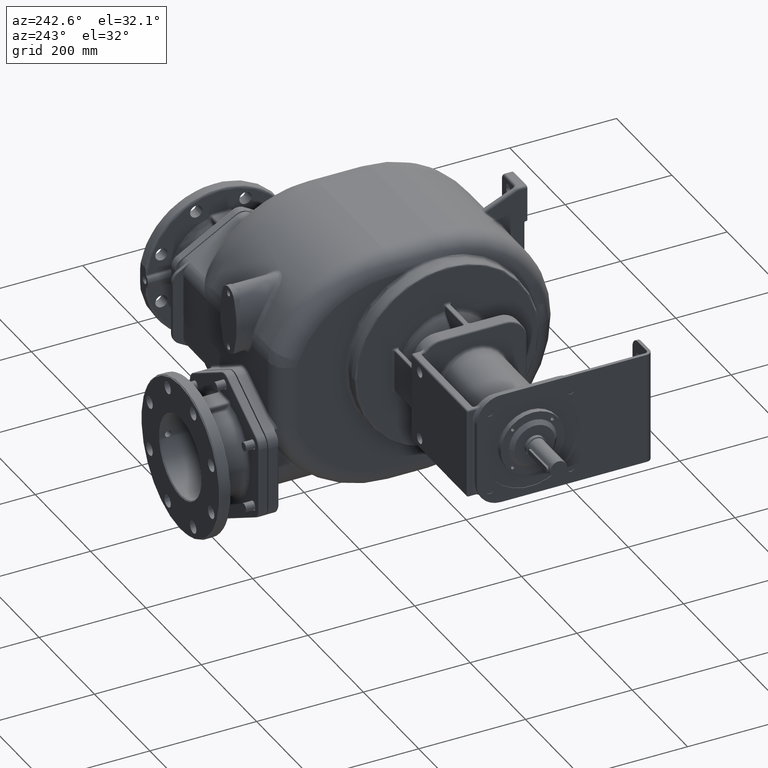
[diagram: clean part render]
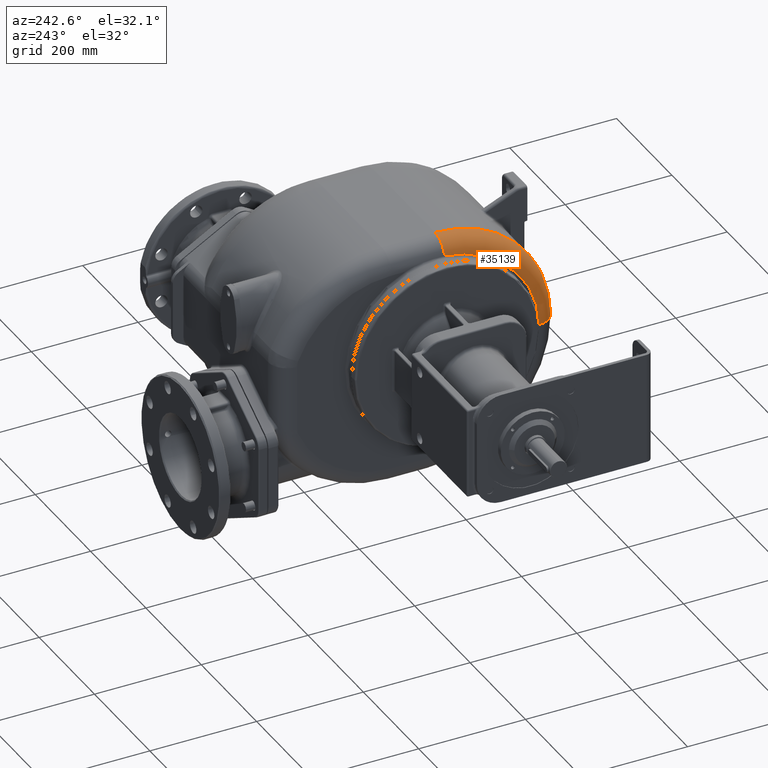
[diagram: same view with one face highlighted and labeled with its STEP entity id]
A machine part, auxiliary view. The second image highlights one B-rep face of the part: STEP entity #35139.
In plain terms, the highlighted toroidal blend (fillet) surface has major radius 176 mm and minor (blend) radius 36 mm.
Its self-contained STEP definition (entity closure, byte-faithful):
#6968=CARTESIAN_POINT('',(-1.2E2,2.17E2,-1.3E1));
#6969=DIRECTION('',(-1.E0,0.E0,0.E0));
#6970=DIRECTION('',(0.E0,-1.E0,0.E0));
#6971=AXIS2_PLACEMENT_3D('',#6968,#6969,#6970);
#9722=CARTESIAN_POINT('',(-1.56E2,2.17E2,-1.3E1));
#9723=DIRECTION('',(-1.E0,0.E0,0.E0));
#9724=DIRECTION('',(0.E0,-1.E0,0.E0));
#9725=AXIS2_PLACEMENT_3D('',#9722,#9723,#9724);
#9938=CARTESIAN_POINT('',(-1.2E2,2.17E2,1.63E2));
#9939=DIRECTION('',(0.E0,1.E0,0.E0));
#9940=DIRECTION('',(-9.648388336903E-1,0.E0,2.628422055211E-1));
#9941=AXIS2_PLACEMENT_3D('',#9938,#9939,#9940);
#9953=CARTESIAN_POINT('',(-1.559999923027E2,1.141219318900E2,1.298008796822E2));
#9954=CARTESIAN_POINT('',(-1.559999914096E2,1.148545513745E2,1.304413593023E2));
#9955=CARTESIAN_POINT('',(-1.559993120328E2,1.163301828413E2,1.317087727713E2));
#9956=CARTESIAN_POINT('',(-1.559961996366E2,1.185702754198E2,1.335705724291E2));
#9957=CARTESIAN_POINT('',(-1.559910533923E2,1.208388312651E2,1.353924176117E2));
#9958=CARTESIAN_POINT('',(-1.559838889199E2,1.231352384709E2,1.371745799978E2));
#9959=CARTESIAN_POINT('',(-1.559747353768E2,1.254595905462E2,1.389170294392E2));
#9960=CARTESIAN_POINT('',(-1.559636200313E2,1.278118162402E2,1.406197786600E2));
#9961=CARTESIAN_POINT('',(-1.559505654556E2,1.301919759069E2,1.422829674642E2));
#9962=CARTESIAN_POINT('',(-1.559355929572E2,1.326001505384E2,1.439066770063E2));
#9963=CARTESIAN_POINT('',(-1.559187207969E2,1.350366921203E2,1.454910837412E2));
#9964=CARTESIAN_POINT('',(-1.558999791482E2,1.375003194414E2,1.470352640069E2));
#9965=CARTESIAN_POINT('',(-1.558794074961E2,1.399891513895E2,1.485380100738E2));
#9966=CARTESIAN_POINT('',(-1.558570507673E2,1.425013509845E2,1.499982625196E2));
#9967=CARTESIAN_POINT('',(-1.558329434181E2,1.450367135001E2,1.514159591409E2));
#9968=CARTESIAN_POINT('',(-1.558071203331E2,1.475951203023E2,1.527910339219E2));
#9969=CARTESIAN_POINT('',(-1.557796192294E2,1.501764559844E2,1.541233707536E2));
#9970=CARTESIAN_POINT('',(-1.557504694011E2,1.527804495858E2,1.554128505744E2));
#9971=CARTESIAN_POINT('',(-1.557196975272E2,1.554070120865E2,1.566594072562E2));
#9972=CARTESIAN_POINT('',(-1.556873400573E2,1.580553442047E2,1.578625997282E2));
#9973=CARTESIAN_POINT('',(-1.556534487102E2,1.607236796160E2,1.590215880559E2));
#9974=CARTESIAN_POINT('',(-1.556180797178E2,1.634102966289E2,1.601356395388E2));
#9975=CARTESIAN_POINT('',(-1.555812850071E2,1.661141453864E2,1.612043574554E2));
#9976=CARTESIAN_POINT('',(-1.555431163192E2,1.688344843720E2,1.622274749476E2));
#9977=CARTESIAN_POINT('',(-1.555036299191E2,1.715704859383E2,1.632047015425E2));
#9978=CARTESIAN_POINT('',(-1.554628775688E2,1.743220969297E2,1.641359928762E2));
#9979=CARTESIAN_POINT('',(-1.554208969281E2,1.770893489811E2,1.650213703502E2));
#9980=CARTESIAN_POINT('',(-1.553777239336E2,1.798719785249E2,1.658607498317E2));
#9981=CARTESIAN_POINT('',(-1.553334139497E2,1.826687228286E2,1.666537303446E2));
#9982=CARTESIAN_POINT('',(-1.552880228669E2,1.854784657875E2,1.673999926813E2));
#9983=CARTESIAN_POINT('',(-1.552416119237E2,1.882999779899E2,1.680992153803E2));
#9984=CARTESIAN_POINT('',(-1.551942408181E2,1.911323463302E2,1.687511838532E2));
#9985=CARTESIAN_POINT('',(-1.551459663529E2,1.939750260389E2,1.693557684783E2));
#9986=CARTESIAN_POINT('',(-1.550968508154E2,1.968273932808E2,1.699128070405E2));
#9987=CARTESIAN_POINT('',(-1.550469571020E2,1.996888703177E2,1.704221478626E2));
#9988=CARTESIAN_POINT('',(-1.549963322467E2,2.025586175052E2,1.708836882328E2));
#9989=CARTESIAN_POINT('',(-1.549450298544E2,2.054357143993E2,1.712973073081E2));
#9990=CARTESIAN_POINT('',(-1.548931073840E2,2.083192606709E2,1.716628925015E2));
#9991=CARTESIAN_POINT('',(-1.548406250099E2,2.112083482196E2,1.719803376914E2));
#9992=CARTESIAN_POINT('',(-1.547876552957E2,2.141020779668E2,1.722495261284E2));
#9993=CARTESIAN_POINT('',(-1.547520504152E2,2.160337051347E2,1.723967763916E2));
#9994=CARTESIAN_POINT('',(-1.547341975839E2,2.17E2,1.724623192819E2));
#9996=CARTESIAN_POINT('',(-1.2E2,4.1E1,-1.3E1));
#9997=DIRECTION('',(0.E0,0.E0,1.E0));
#9998=DIRECTION('',(-1.E0,0.E0,0.E0));
#9999=AXIS2_PLACEMENT_3D('',#9996,#9997,#9998);
#21675=CARTESIAN_POINT('',(-1.2E2,2.17E2,1.99E2));
#21677=VERTEX_POINT('',#21675);
#21715=CARTESIAN_POINT('',(-1.56E2,4.1E1,-1.3E1));
#21716=VERTEX_POINT('',#21715);
#21717=CARTESIAN_POINT('',(-1.2E2,5.E0,-1.3E1));
#21718=VERTEX_POINT('',#21717);
#22061=VERTEX_POINT('',#9953);
#22062=VERTEX_POINT('',#9994);
#35126=CARTESIAN_POINT('',(-1.2E2,2.17E2,-1.3E1));
#35127=DIRECTION('',(-1.E0,0.E0,0.E0));
#35128=DIRECTION('',(0.E0,-9.999842713648E-1,-5.608656083237E-3));
#35129=AXIS2_PLACEMENT_3D('',#35126,#35127,#35128);
#35130=TOROIDAL_SURFACE('',#35129,1.76E2,3.6E1);
#35132=ORIENTED_EDGE('',*,*,#35131,.T.);
#35133=ORIENTED_EDGE('',*,*,#35065,.T.);
#35134=ORIENTED_EDGE('',*,*,#32205,.F.);
#35135=ORIENTED_EDGE('',*,*,#34900,.F.);
#35136=ORIENTED_EDGE('',*,*,#34915,.T.);
#35137=EDGE_LOOP('',(#35132,#35133,#35134,#35135,#35136));
#35138=FACE_OUTER_BOUND('',#35137,.F.);
#35139=ADVANCED_FACE('',(#35138),#35130,.T.);
#6972=CIRCLE('',#6971,2.12E2);
#9726=CIRCLE('',#9725,1.76E2);
#9942=CIRCLE('',#9941,3.6E1);
#9995=B_SPLINE_CURVE_WITH_KNOTS('',3,(#9953,#9954,#9955,#9956,#9957,#9958,#9959,
#9960,#9961,#9962,#9963,#9964,#9965,#9966,#9967,#9968,#9969,#9970,#9971,#9972,
#9973,#9974,#9975,#9976,#9977,#9978,#9979,#9980,#9981,#9982,#9983,#9984,#9985,
#9986,#9987,#9988,#9989,#9990,#9991,#9992,#9993,#9994),.UNSPECIFIED.,.F.,.F.,(4,
1,1,1,1,1,1,1,1,1,1,1,1,1,1,1,1,1,1,1,1,1,1,1,1,1,1,1,1,1,1,1,1,1,1,1,1,1,1,4),(
0.E0,2.564102564103E-2,5.128205128205E-2,7.692307692308E-2,1.025641025641E-1,
1.282051282051E-1,1.538461538462E-1,1.794871794872E-1,2.051282051282E-1,
2.307692307692E-1,2.564102564103E-1,2.820512820513E-1,3.076923076923E-1,
3.333333333333E-1,3.589743589744E-1,3.846153846154E-1,4.102564102564E-1,
4.358974358974E-1,4.615384615385E-1,4.871794871795E-1,5.128205128205E-1,
5.384615384615E-1,5.641025641026E-1,5.897435897436E-1,6.153846153846E-1,
6.410256410256E-1,6.666666666667E-1,6.923076923077E-1,7.179487179487E-1,
7.435897435897E-1,7.692307692308E-1,7.948717948718E-1,8.205128205128E-1,
8.461538461538E-1,8.717948717949E-1,8.974358974359E-1,9.230769230769E-1,
9.487179487179E-1,9.743589743590E-1,1.E0),.UNSPECIFIED.);
#10000=CIRCLE('',#9999,3.6E1);
#32205=EDGE_CURVE('',#21718,#21677,#6972,.T.);
#34900=EDGE_CURVE('',#21716,#21718,#10000,.T.);
#34915=EDGE_CURVE('',#21716,#22061,#9726,.T.);
#35065=EDGE_CURVE('',#22062,#21677,#9942,.T.);
#35131=EDGE_CURVE('',#22061,#22062,#9995,.T.);